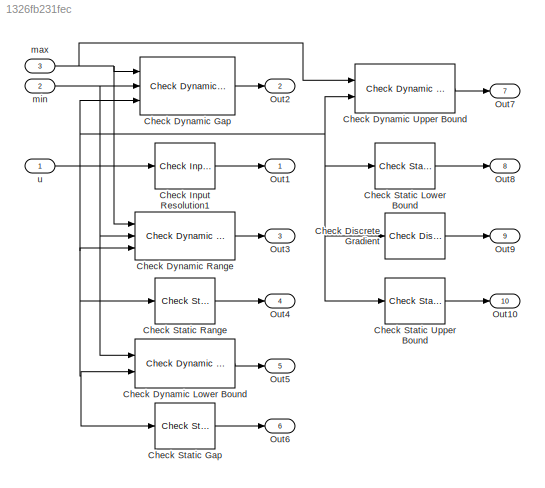
MODEL slx_1326fb231fec
KIND model
CONFIG AbsTol = auto
CONFIG EnableMultiTasking = off
CONFIG FixedStep = 0.200000
CONFIG MaxStep = auto
CONFIG MinStep = auto
CONFIG RelTol = 1e-3
CONFIG SampleTimeConstraint = Unconstrained
CONFIG Solver = FixedStepDiscrete
CONFIG SolverName = FixedStepDiscrete
CONFIG StartTime = 0.0
CONFIG StopTime = 19.8
BLOCK [Reference] Check Discrete Gradient  REF=simulink/Model
Verification/Check
Discrete Gradient
  Description = | du / dt | < 1
  Ports = [1, 1]
  SourceBlock = simulink/Model\nVerification/Check\nDiscrete Gradient
  SourceProductBaseCode = SL
  SourceProductName = Simulink
  SourceType = Checks_Gradient
BLOCK [Reference] Check Dynamic Gap  REF=simulink/Model
Verification/Check 
Dynamic Gap
  Description = u < min || max < u
  Ports = [3, 1]
  SourceBlock = simulink/Model\nVerification/Check \nDynamic Gap
  SourceProductBaseCode = SL
  SourceProductName = Simulink
  SourceType = Checks_DGap
BLOCK [Reference] Check Dynamic Lower Bound  REF=simulink/Model
Verification/Check Dynamic 
Lower Bound
  Description = min < u
  Ports = [2, 1]
  SourceBlock = simulink/Model\nVerification/Check Dynamic \nLower Bound
  SourceProductBaseCode = SL
  SourceProductName = Simulink
  SourceType = Checks_DMin
BLOCK [Reference] Check Dynamic Range  REF=simulink/Model
Verification/Check 
Dynamic Range
  Description = min < u < max
  Ports = [3, 1]
  SourceBlock = simulink/Model\nVerification/Check \nDynamic Range
  SourceProductBaseCode = SL
  SourceProductName = Simulink
  SourceType = Checks_DRange
BLOCK [Reference] Check Dynamic Upper Bound  REF=simulink/Model
Verification/Check Dynamic 
Upper Bound
  Description = u < max
  Ports = [2, 1]
  SourceBlock = simulink/Model\nVerification/Check Dynamic \nUpper Bound
  SourceProductBaseCode = SL
  SourceProductName = Simulink
  SourceType = Checks_DMax
BLOCK [Reference] Check Input Resolution1  REF=simulink/Model
Verification/Check Input 
Resolution
  Description = -Inf < u < +Inf
  Ports = [1, 1]
  SourceBlock = simulink/Model\nVerification/Check Input \nResolution
  SourceProductBaseCode = SL
  SourceProductName = Simulink
  SourceType = Checks_Resolution
BLOCK [Reference] Check Static Gap  REF=simulink/Model
Verification/Check 
Static Gap
  Description = u <= 0 || 100 <= u
  Ports = [1, 1]
  SourceBlock = simulink/Model\nVerification/Check \nStatic Gap
  SourceProductBaseCode = SL
  SourceProductName = Simulink
  SourceType = Checks_SGap
BLOCK [Reference] Check Static Lower Bound  REF=simulink/Model
Verification/Check Static 
Lower Bound
  Description = 0 <= u
  Ports = [1, 1]
  SourceBlock = simulink/Model\nVerification/Check Static \nLower Bound
  SourceProductBaseCode = SL
  SourceProductName = Simulink
  SourceType = Checks_SMin
BLOCK [Reference] Check Static Range  REF=simulink/Model
Verification/Check 
Static Range
  Description = 0 <= u <= 100
  Ports = [1, 1]
  SourceBlock = simulink/Model\nVerification/Check \nStatic Range
  SourceProductBaseCode = SL
  SourceProductName = Simulink
  SourceType = Checks_SRange
BLOCK [Reference] Check Static Upper Bound  REF=simulink/Model
Verification/Check Static 
Upper Bound
  Description = u <= 0
  Ports = [1, 1]
  SourceBlock = simulink/Model\nVerification/Check Static \nUpper Bound
  SourceProductBaseCode = SL
  SourceProductName = Simulink
  SourceType = Checks_SMax
BLOCK [Outport] Out1
  IconDisplay = Port number
BLOCK [Outport] Out10
  IconDisplay = Port number
  Port = 10
BLOCK [Outport] Out2
  IconDisplay = Port number
  Port = 2
BLOCK [Outport] Out3
  IconDisplay = Port number
  Port = 3
BLOCK [Outport] Out4
  IconDisplay = Port number
  Port = 4
BLOCK [Outport] Out5
  IconDisplay = Port number
  Port = 5
BLOCK [Outport] Out6
  IconDisplay = Port number
  Port = 6
BLOCK [Outport] Out7
  IconDisplay = Port number
  Port = 7
BLOCK [Outport] Out8
  IconDisplay = Port number
  Port = 8
BLOCK [Outport] Out9
  IconDisplay = Port number
  Port = 9
BLOCK [Inport] max
  IconDisplay = Port number
  Port = 3
BLOCK [Inport] min
  IconDisplay = Port number
  Port = 2
BLOCK [Inport] u
  IconDisplay = Port number
LINE Check Discrete Gradient:1 -> Out9:1
LINE Check Dynamic Gap:1 -> Out2:1
LINE Check Dynamic Lower Bound:1 -> Out5:1
LINE Check Dynamic Range:1 -> Out3:1
LINE Check Dynamic Upper Bound:1 -> Out7:1
LINE Check Input Resolution1:1 -> Out1:1
LINE Check Static Gap:1 -> Out6:1
LINE Check Static Lower Bound:1 -> Out8:1
LINE Check Static Range:1 -> Out4:1
LINE Check Static Upper Bound:1 -> Out10:1
NET max:1 -> Check Dynamic Gap:1, Check Dynamic Range:1, Check Dynamic Upper Bound:1
NET min:1 -> Check Dynamic Gap:2, Check Dynamic Lower Bound:1, Check Dynamic Range:2
NET u:1 -> Check Discrete Gradient:1, Check Dynamic Gap:3, Check Dynamic Lower Bound:2, Check Dynamic Range:3, Check Dynamic Upper Bound:2, Check Input Resolution1:1, Check Static Gap:1, Check Static Lower Bound:1, Check Static Range:1, Check Static Upper Bound:1
note: NET lines group one-source signal fan-out (src -> all destinations, sorted); 1:1 wires keep LINE
